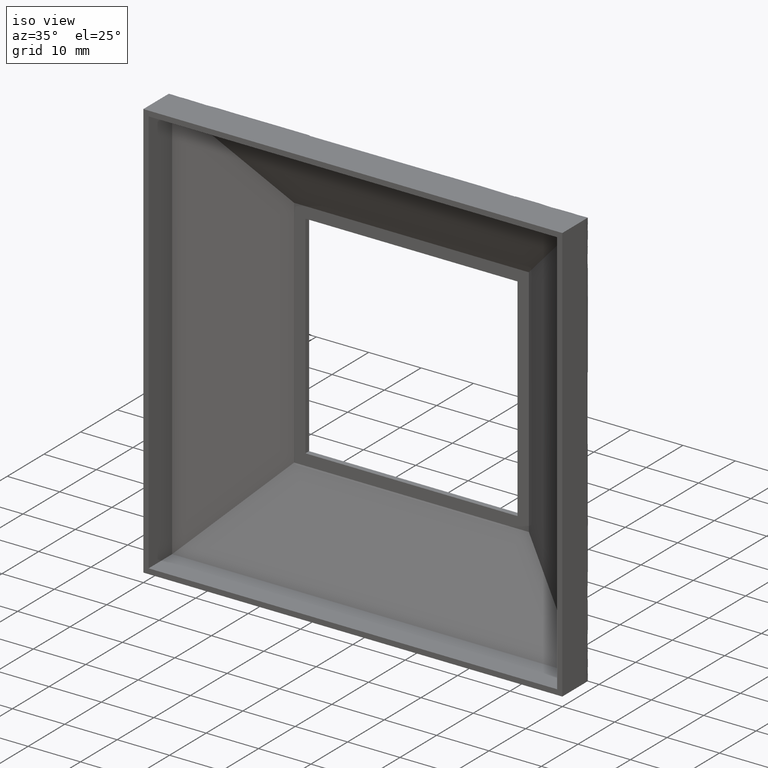
[diagram: clean part render]
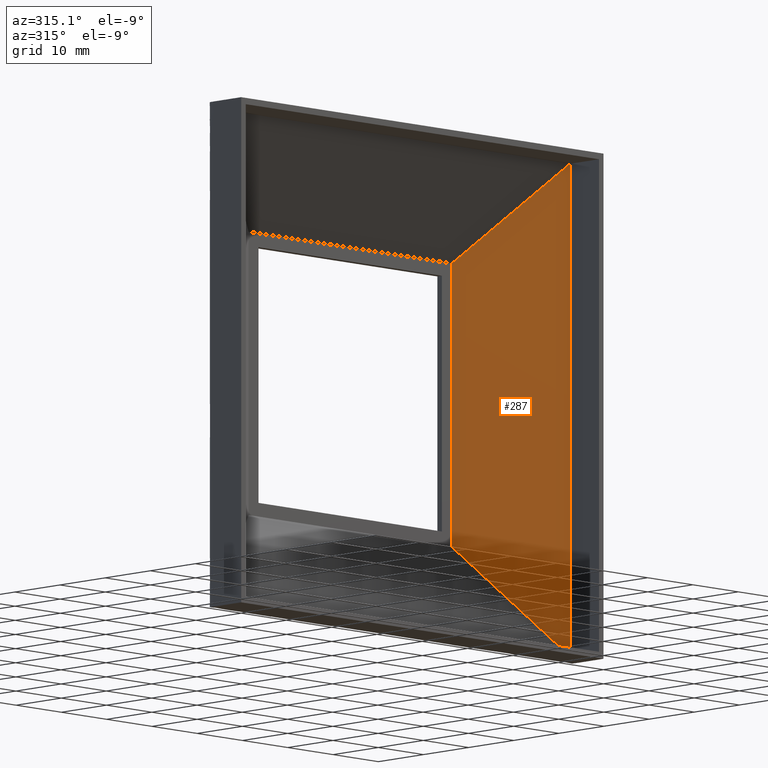
[diagram: tour spotlight — one face highlighted and labeled with its STEP entity id]
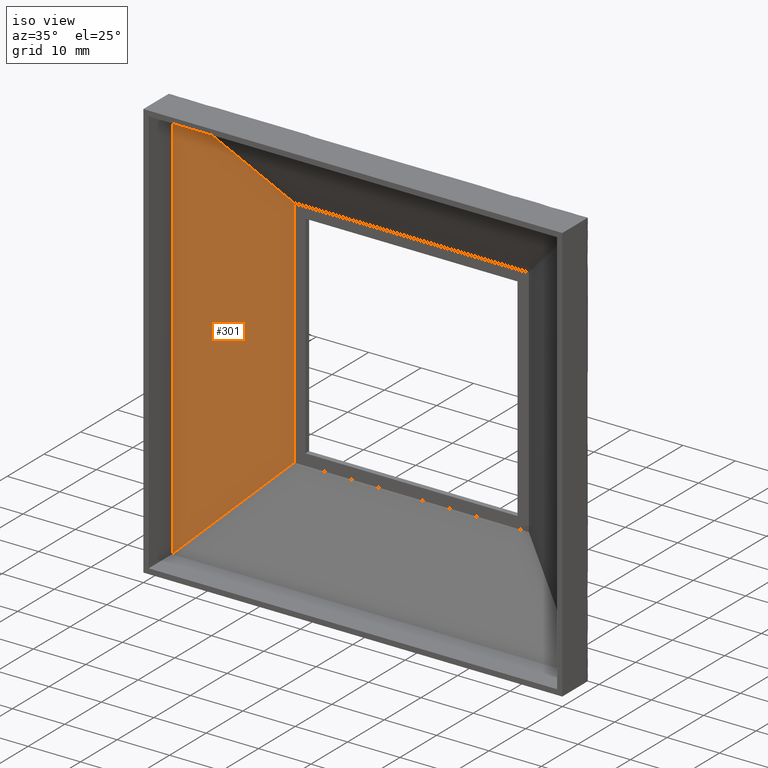
[diagram: tour spotlight — one face highlighted and labeled with its STEP entity id]
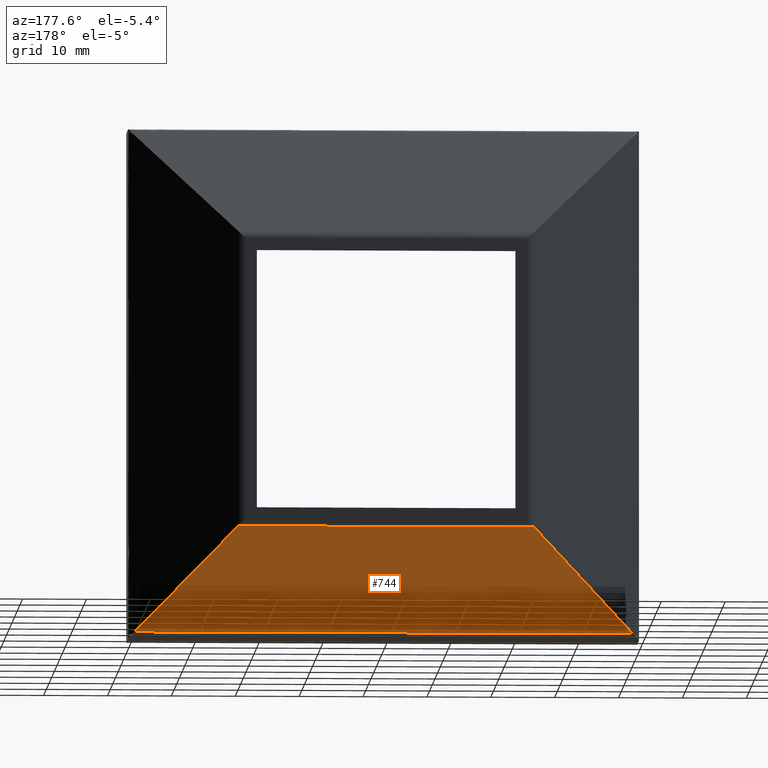
[diagram: tour spotlight — one face highlighted and labeled with its STEP entity id]
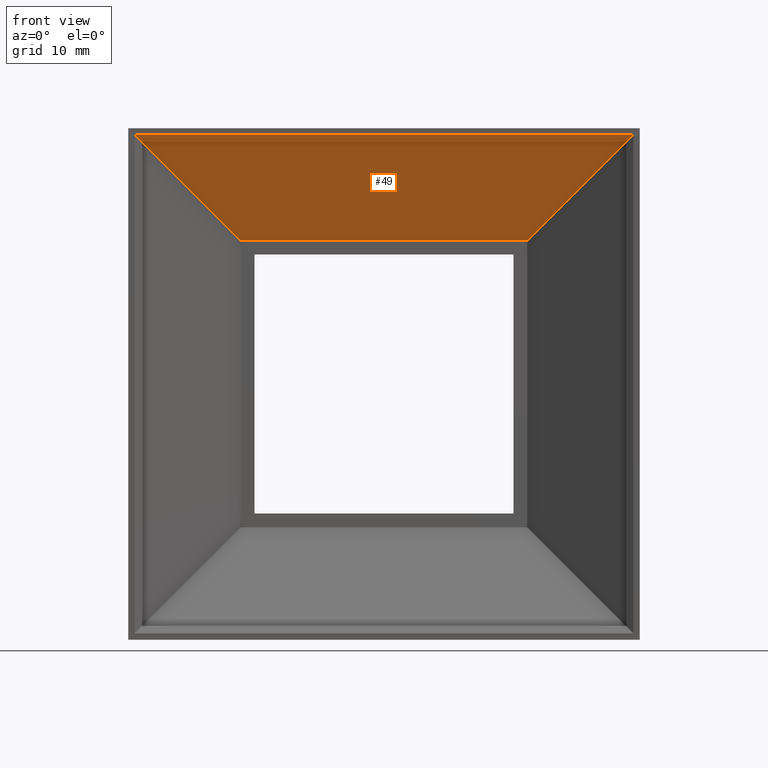
[diagram: tour spotlight — one face highlighted and labeled with its STEP entity id]
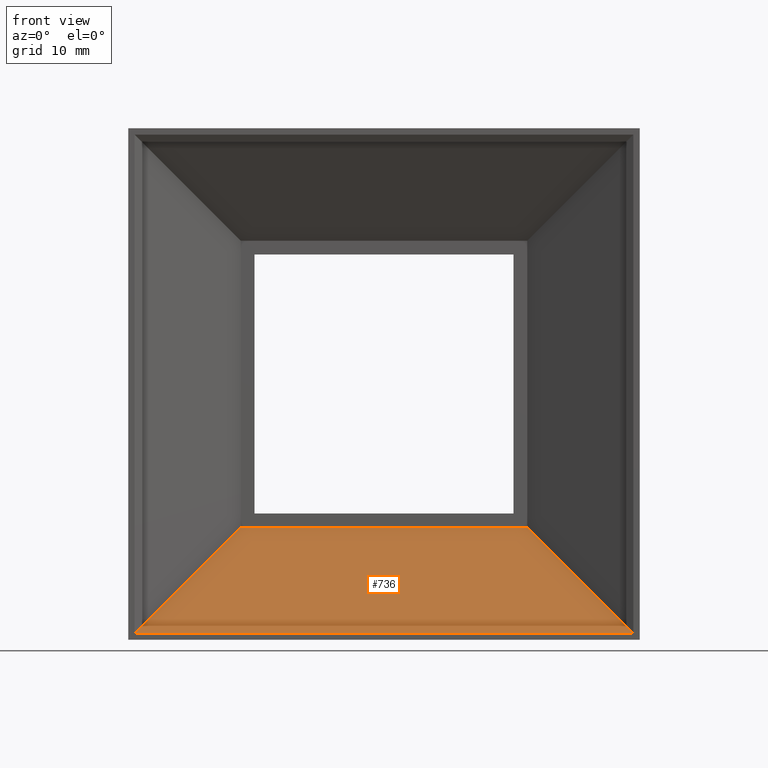
[diagram: tour spotlight — one face highlighted and labeled with its STEP entity id]
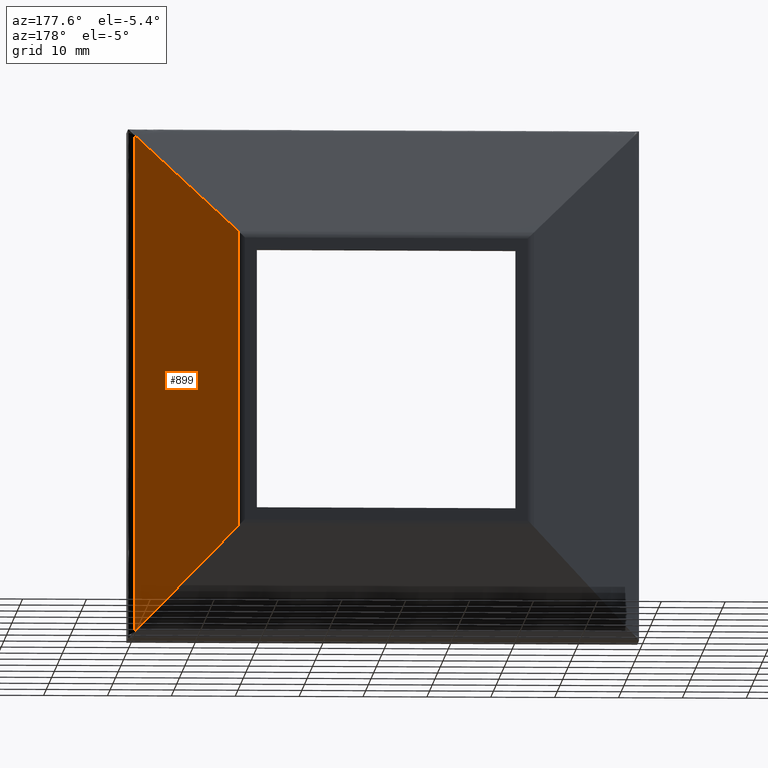
[diagram: tour spotlight — one face highlighted and labeled with its STEP entity id]
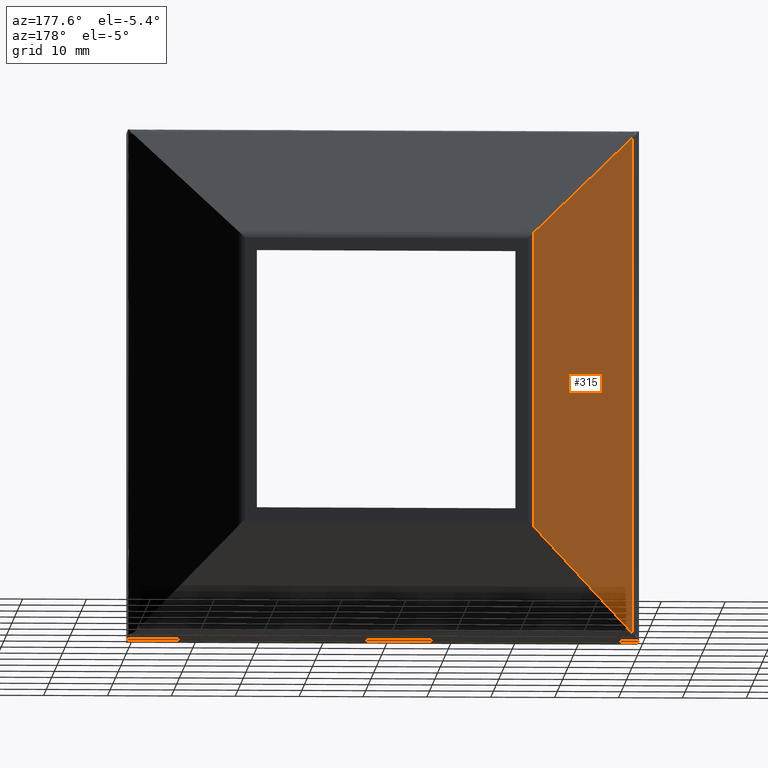
[diagram: tour spotlight — one face highlighted and labeled with its STEP entity id]
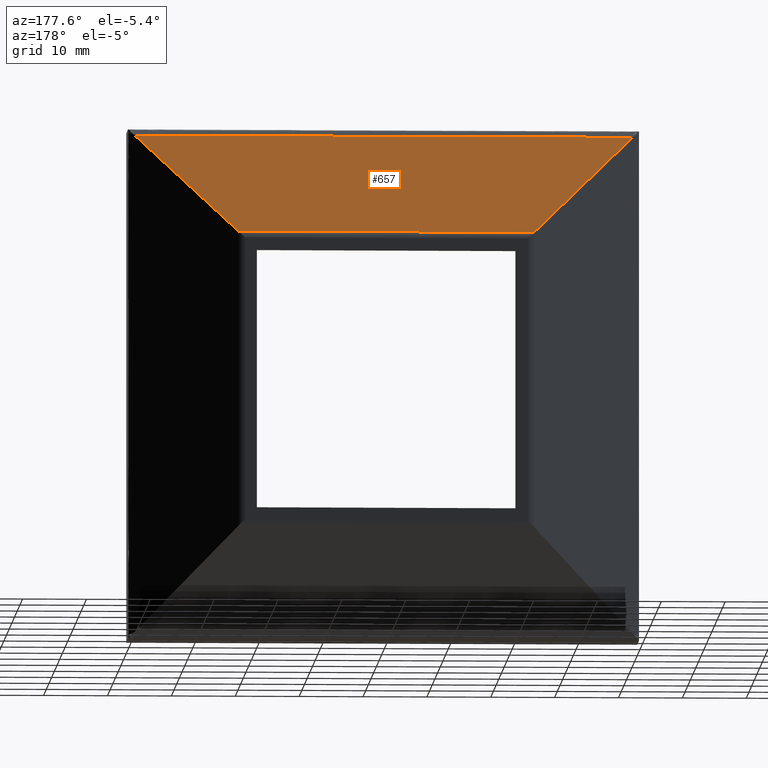
[diagram: tour spotlight — one face highlighted and labeled with its STEP entity id]
A machine part: a face-by-face anatomy tour. The part has 31 B-rep faces; the first image is the clean iso view, then the 8 largest visible faces are spotlighted one at a time (largest first), each with its STEP entity span.

Face 1 — auxiliary view, entity #287. In plain terms, the highlighted planar face has unit normal (0.5, 0.866, 0).
Definition (entity closure, byte-faithful):
#93 = DIRECTION ( 'NONE',  ( -0.8660254037844397100, 0.4999999999999979500, 0.0000000000000000000 ) ) ;
#109 = VERTEX_POINT ( 'NONE', #206 ) ;
#118 = CARTESIAN_POINT ( 'NONE',  ( 22.41154273187999700, 16.00000000000000000, 39.99999999999999300 ) ) ;
#139 = LINE ( 'NONE', #242, #1124 ) ;
#159 = DIRECTION ( 'NONE',  ( 0.6546536707079776400, -0.3779644730092254800, 0.6546536707079776400 ) ) ;
#174 = VECTOR ( 'NONE', #876, 1000.000000000000000 ) ;
#182 = DIRECTION ( 'NONE',  ( 0.4999999999999980000, 0.8660254037844398200, 0.0000000000000000000 ) ) ;
#206 = CARTESIAN_POINT ( 'NONE',  ( 22.41154273187999400, 16.00000000000000000, 22.41154273188000100 ) ) ;
#210 = VERTEX_POINT ( 'NONE', #712 ) ;
#211 = EDGE_CURVE ( 'NONE', #218, #743, #935, .T. ) ;
#218 = VERTEX_POINT ( 'NONE', #790 ) ;
#224 = ORIENTED_EDGE ( 'NONE', *, *, #737, .F. ) ;
#242 = CARTESIAN_POINT ( 'NONE',  ( 38.99999999999998600, 6.422649730810371200, 39.99999999999999300 ) ) ;
#287 = ADVANCED_FACE ( 'NONE', ( #853 ), #516, .F. ) ;
#327 = EDGE_CURVE ( 'NONE', #109, #218, #374, .T. ) ;
#335 = ORIENTED_EDGE ( 'NONE', *, *, #327, .T. ) ;
#369 = CARTESIAN_POINT ( 'NONE',  ( 39.71428571428570100, 6.010256681389211800, -39.71428571428572200 ) ) ;
#374 = LINE ( 'NONE', #118, #174 ) ;
#447 = ORIENTED_EDGE ( 'NONE', *, *, #463, .F. ) ;
#463 = EDGE_CURVE ( 'NONE', #210, #743, #139, .T. ) ;
#469 = VECTOR ( 'NONE', #159, 1000.000000000000000 ) ;
#504 = DIRECTION ( 'NONE',  ( -0.0000000000000000000, 0.0000000000000000000, -1.000000000000000000 ) ) ;
#516 = PLANE ( 'NONE',  #733 ) ;
#519 = LINE ( 'NONE', #826, #469 ) ;
#603 = CARTESIAN_POINT ( 'NONE',  ( 39.49999999999998600, 6.133974596215559800, 39.99999999999999300 ) ) ;
#702 = ORIENTED_EDGE ( 'NONE', *, *, #211, .T. ) ;
#712 = CARTESIAN_POINT ( 'NONE',  ( 38.99999999999998600, 6.422649730810371200, 38.99999999999999300 ) ) ;
#733 = AXIS2_PLACEMENT_3D ( 'NONE', #603, #182, #93 ) ;
#737 = EDGE_CURVE ( 'NONE', #109, #210, #519, .T. ) ;
#743 = VERTEX_POINT ( 'NONE', #923 ) ;
#790 = CARTESIAN_POINT ( 'NONE',  ( 22.41154273187999400, 16.00000000000000000, -22.41154273188001500 ) ) ;
#826 = CARTESIAN_POINT ( 'NONE',  ( 39.71428571428570100, 6.010256681389211800, 39.71428571428570800 ) ) ;
#853 = FACE_OUTER_BOUND ( 'NONE', #1064, .T. ) ;
#876 = DIRECTION ( 'NONE',  ( -0.0000000000000000000, 0.0000000000000000000, -1.000000000000000000 ) ) ;
#889 = DIRECTION ( 'NONE',  ( 0.6546536707079776400, -0.3779644730092254800, -0.6546536707079776400 ) ) ;
#923 = CARTESIAN_POINT ( 'NONE',  ( 38.99999999999998600, 6.422649730810371200, -39.00000000000000700 ) ) ;
#935 = LINE ( 'NONE', #369, #1091 ) ;
#1064 = EDGE_LOOP ( 'NONE', ( #447, #224, #335, #702 ) ) ;
#1091 = VECTOR ( 'NONE', #889, 1000.000000000000000 ) ;
#1124 = VECTOR ( 'NONE', #504, 1000.000000000000000 ) ;

Face 2 — iso view, entity #301. In plain terms, the highlighted planar face has unit normal (-0.5, 0.866, 0).
Definition (entity closure, byte-faithful):
#29 = ORIENTED_EDGE ( 'NONE', *, *, #1060, .F. ) ;
#78 = AXIS2_PLACEMENT_3D ( 'NONE', #354, #526, #958 ) ;
#105 = EDGE_CURVE ( 'NONE', #1083, #270, #179, .T. ) ;
#179 = LINE ( 'NONE', #798, #1067 ) ;
#216 = EDGE_LOOP ( 'NONE', ( #29, #551, #781, #913 ) ) ;
#247 = CARTESIAN_POINT ( 'NONE',  ( -22.41154273188002200, 16.00000000000000000, 22.41154273188000100 ) ) ;
#270 = VERTEX_POINT ( 'NONE', #967 ) ;
#301 = ADVANCED_FACE ( 'NONE', ( #742 ), #414, .F. ) ;
#354 = CARTESIAN_POINT ( 'NONE',  ( -39.50000000000001400, 6.133974596215559800, -40.00000000000000700 ) ) ;
#380 = DIRECTION ( 'NONE',  ( -0.0000000000000000000, -0.0000000000000000000, 1.000000000000000000 ) ) ;
#385 = VECTOR ( 'NONE', #581, 1000.000000000000000 ) ;
#394 = CARTESIAN_POINT ( 'NONE',  ( -22.41154273188002200, 16.00000000000000000, -22.41154273188001500 ) ) ;
#414 = PLANE ( 'NONE',  #78 ) ;
#416 = DIRECTION ( 'NONE',  ( -0.0000000000000000000, -0.0000000000000000000, 1.000000000000000000 ) ) ;
#431 = VERTEX_POINT ( 'NONE', #247 ) ;
#493 = VECTOR ( 'NONE', #416, 1000.000000000000000 ) ;
#526 = DIRECTION ( 'NONE',  ( -0.4999999999999980000, 0.8660254037844398200, 0.0000000000000000000 ) ) ;
#551 = ORIENTED_EDGE ( 'NONE', *, *, #105, .F. ) ;
#555 = VERTEX_POINT ( 'NONE', #741 ) ;
#581 = DIRECTION ( 'NONE',  ( -0.6546536707079776400, -0.3779644730092254800, 0.6546536707079776400 ) ) ;
#634 = CARTESIAN_POINT ( 'NONE',  ( -39.00000000000001400, 6.422649730810371200, -40.00000000000000700 ) ) ;
#647 = CARTESIAN_POINT ( 'NONE',  ( -22.41154273188002600, 16.00000000000000000, -40.00000000000000700 ) ) ;
#668 = CARTESIAN_POINT ( 'NONE',  ( -39.71428571428573000, 6.010256681389211800, 39.71428571428570800 ) ) ;
#720 = LINE ( 'NONE', #647, #493 ) ;
#741 = CARTESIAN_POINT ( 'NONE',  ( -39.00000000000001400, 6.422649730810371200, 38.99999999999999300 ) ) ;
#742 = FACE_OUTER_BOUND ( 'NONE', #216, .T. ) ;
#776 = VECTOR ( 'NONE', #380, 1000.000000000000000 ) ;
#781 = ORIENTED_EDGE ( 'NONE', *, *, #1086, .T. ) ;
#798 = CARTESIAN_POINT ( 'NONE',  ( -39.71428571428573000, 6.010256681389211800, -39.71428571428572200 ) ) ;
#828 = EDGE_CURVE ( 'NONE', #431, #555, #924, .T. ) ;
#878 = DIRECTION ( 'NONE',  ( -0.6546536707079776400, -0.3779644730092254800, -0.6546536707079776400 ) ) ;
#913 = ORIENTED_EDGE ( 'NONE', *, *, #828, .T. ) ;
#924 = LINE ( 'NONE', #668, #385 ) ;
#958 = DIRECTION ( 'NONE',  ( -0.8660254037844397100, -0.4999999999999979500, 0.0000000000000000000 ) ) ;
#967 = CARTESIAN_POINT ( 'NONE',  ( -39.00000000000001400, 6.422649730810371200, -39.00000000000000700 ) ) ;
#1034 = LINE ( 'NONE', #634, #776 ) ;
#1060 = EDGE_CURVE ( 'NONE', #270, #555, #1034, .T. ) ;
#1067 = VECTOR ( 'NONE', #878, 1000.000000000000000 ) ;
#1083 = VERTEX_POINT ( 'NONE', #394 ) ;
#1086 = EDGE_CURVE ( 'NONE', #1083, #431, #720, .T. ) ;

Face 3 — auxiliary view, entity #744. In plain terms, the highlighted planar face has unit normal (0, 0.866, -0.5).
Definition (entity closure, byte-faithful):
#8 = CARTESIAN_POINT ( 'NONE',  ( 12.99999999999997700, 7.577350269189627100, -39.00000000000000000 ) ) ;
#23 = EDGE_CURVE ( 'NONE', #877, #1073, #568, .T. ) ;
#45 = EDGE_LOOP ( 'NONE', ( #635, #662, #393, #195 ) ) ;
#61 = PLANE ( 'NONE',  #892 ) ;
#148 = CARTESIAN_POINT ( 'NONE',  ( -40.00000000000001400, 7.000000000000000000, -40.00000000000000700 ) ) ;
#195 = ORIENTED_EDGE ( 'NONE', *, *, #23, .T. ) ;
#235 = CARTESIAN_POINT ( 'NONE',  ( -23.14359353944890400, 16.73205080756887900, -23.14359353944889700 ) ) ;
#276 = VECTOR ( 'NONE', #342, 1000.000000000000000 ) ;
#289 = VECTOR ( 'NONE', #403, 1000.000000000000000 ) ;
#331 = CARTESIAN_POINT ( 'NONE',  ( 23.14359353944887600, 16.73205080756887900, -23.14359353944889700 ) ) ;
#342 = DIRECTION ( 'NONE',  ( 1.000000000000000000, -0.0000000000000000000, -0.0000000000000000000 ) ) ;
#393 = ORIENTED_EDGE ( 'NONE', *, *, #464, .T. ) ;
#403 = DIRECTION ( 'NONE',  ( -0.6546536707079776400, -0.3779644730092254800, -0.6546536707079776400 ) ) ;
#408 = CARTESIAN_POINT ( 'NONE',  ( 38.99999999999997200, 7.577350269189631500, -38.99999999999999300 ) ) ;
#413 = DIRECTION ( 'NONE',  ( 0.0000000000000000000, 0.4999999999999979500, 0.8660254037844397100 ) ) ;
#441 = CARTESIAN_POINT ( 'NONE',  ( -39.00000000000000700, 7.577350269189627100, -39.00000000000000000 ) ) ;
#461 = VERTEX_POINT ( 'NONE', #331 ) ;
#464 = EDGE_CURVE ( 'NONE', #461, #877, #655, .T. ) ;
#500 = EDGE_CURVE ( 'NONE', #1076, #461, #868, .T. ) ;
#520 = FACE_OUTER_BOUND ( 'NONE', #45, .T. ) ;
#528 = CARTESIAN_POINT ( 'NONE',  ( 38.99999999999997200, 7.577350269189631500, -38.99999999999999300 ) ) ;
#568 = B_SPLINE_CURVE_WITH_KNOTS ( 'NONE', 3,
 ( #528, #8, #613, #441 ),
 .UNSPECIFIED., .F., .F.,
 ( 4, 4 ),
 ( 0.0000000000000000000, 1.000000000000000000 ),
 .UNSPECIFIED. ) ;
#593 = CARTESIAN_POINT ( 'NONE',  ( 22.67949192431111500, 16.73205080756887900, -23.14359353944890100 ) ) ;
#613 = CARTESIAN_POINT ( 'NONE',  ( -13.00000000000001800, 7.577350269189627100, -39.00000000000000000 ) ) ;
#635 = ORIENTED_EDGE ( 'NONE', *, *, #755, .F. ) ;
#655 = LINE ( 'NONE', #683, #792 ) ;
#659 = DIRECTION ( 'NONE',  ( 0.0000000000000000000, 0.8660254037844398200, -0.4999999999999980000 ) ) ;
#662 = ORIENTED_EDGE ( 'NONE', *, *, #500, .T. ) ;
#683 = CARTESIAN_POINT ( 'NONE',  ( 39.99999999999998600, 7.000000000000000000, -40.00000000000000700 ) ) ;
#744 = ADVANCED_FACE ( 'NONE', ( #520 ), #61, .T. ) ;
#755 = EDGE_CURVE ( 'NONE', #1076, #1073, #921, .T. ) ;
#761 = CARTESIAN_POINT ( 'NONE',  ( 39.99999999999998600, 7.000000000000000000, -40.00000000000000700 ) ) ;
#792 = VECTOR ( 'NONE', #942, 1000.000000000000000 ) ;
#868 = LINE ( 'NONE', #593, #276 ) ;
#877 = VERTEX_POINT ( 'NONE', #408 ) ;
#892 = AXIS2_PLACEMENT_3D ( 'NONE', #761, #659, #413 ) ;
#908 = CARTESIAN_POINT ( 'NONE',  ( -39.00000000000000700, 7.577350269189627100, -39.00000000000000000 ) ) ;
#921 = LINE ( 'NONE', #148, #289 ) ;
#942 = DIRECTION ( 'NONE',  ( 0.6546536707079776400, -0.3779644730092254800, -0.6546536707079776400 ) ) ;
#1073 = VERTEX_POINT ( 'NONE', #908 ) ;
#1076 = VERTEX_POINT ( 'NONE', #235 ) ;

Face 4 — front view, entity #49. In plain terms, the highlighted planar face has unit normal (0, 0.866, 0.5).
Definition (entity closure, byte-faithful):
#3 = AXIS2_PLACEMENT_3D ( 'NONE', #112, #99, #104 ) ;
#19 = CARTESIAN_POINT ( 'NONE',  ( -40.00000000000001400, 6.422649730810371200, 38.99999999999999300 ) ) ;
#49 = ADVANCED_FACE ( 'NONE', ( #207 ), #532, .F. ) ;
#55 = CARTESIAN_POINT ( 'NONE',  ( -40.00000000000001400, 16.00000000000000000, 22.41154273188000400 ) ) ;
#59 = EDGE_CURVE ( 'NONE', #555, #210, #856, .T. ) ;
#99 = DIRECTION ( 'NONE',  ( 0.0000000000000000000, 0.8660254037844398200, 0.4999999999999980000 ) ) ;
#104 = DIRECTION ( 'NONE',  ( 0.0000000000000000000, -0.4999999999999979500, 0.8660254037844397100 ) ) ;
#109 = VERTEX_POINT ( 'NONE', #206 ) ;
#112 = CARTESIAN_POINT ( 'NONE',  ( -40.00000000000001400, 6.133974596215559800, 39.49999999999999300 ) ) ;
#159 = DIRECTION ( 'NONE',  ( 0.6546536707079776400, -0.3779644730092254800, 0.6546536707079776400 ) ) ;
#206 = CARTESIAN_POINT ( 'NONE',  ( 22.41154273187999400, 16.00000000000000000, 22.41154273188000100 ) ) ;
#207 = FACE_OUTER_BOUND ( 'NONE', #424, .T. ) ;
#210 = VERTEX_POINT ( 'NONE', #712 ) ;
#247 = CARTESIAN_POINT ( 'NONE',  ( -22.41154273188002200, 16.00000000000000000, 22.41154273188000100 ) ) ;
#385 = VECTOR ( 'NONE', #581, 1000.000000000000000 ) ;
#407 = ORIENTED_EDGE ( 'NONE', *, *, #59, .F. ) ;
#424 = EDGE_LOOP ( 'NONE', ( #407, #592, #444, #502 ) ) ;
#431 = VERTEX_POINT ( 'NONE', #247 ) ;
#444 = ORIENTED_EDGE ( 'NONE', *, *, #787, .T. ) ;
#469 = VECTOR ( 'NONE', #159, 1000.000000000000000 ) ;
#502 = ORIENTED_EDGE ( 'NONE', *, *, #737, .T. ) ;
#519 = LINE ( 'NONE', #826, #469 ) ;
#532 = PLANE ( 'NONE',  #3 ) ;
#555 = VERTEX_POINT ( 'NONE', #741 ) ;
#566 = DIRECTION ( 'NONE',  ( 1.000000000000000000, 0.0000000000000000000, -0.0000000000000000000 ) ) ;
#581 = DIRECTION ( 'NONE',  ( -0.6546536707079776400, -0.3779644730092254800, 0.6546536707079776400 ) ) ;
#592 = ORIENTED_EDGE ( 'NONE', *, *, #828, .F. ) ;
#629 = VECTOR ( 'NONE', #794, 1000.000000000000000 ) ;
#668 = CARTESIAN_POINT ( 'NONE',  ( -39.71428571428573000, 6.010256681389211800, 39.71428571428570800 ) ) ;
#699 = LINE ( 'NONE', #55, #895 ) ;
#712 = CARTESIAN_POINT ( 'NONE',  ( 38.99999999999998600, 6.422649730810371200, 38.99999999999999300 ) ) ;
#737 = EDGE_CURVE ( 'NONE', #109, #210, #519, .T. ) ;
#741 = CARTESIAN_POINT ( 'NONE',  ( -39.00000000000001400, 6.422649730810371200, 38.99999999999999300 ) ) ;
#787 = EDGE_CURVE ( 'NONE', #431, #109, #699, .T. ) ;
#794 = DIRECTION ( 'NONE',  ( 1.000000000000000000, -0.0000000000000000000, -0.0000000000000000000 ) ) ;
#826 = CARTESIAN_POINT ( 'NONE',  ( 39.71428571428570100, 6.010256681389211800, 39.71428571428570800 ) ) ;
#828 = EDGE_CURVE ( 'NONE', #431, #555, #924, .T. ) ;
#856 = LINE ( 'NONE', #19, #629 ) ;
#895 = VECTOR ( 'NONE', #566, 1000.000000000000000 ) ;
#924 = LINE ( 'NONE', #668, #385 ) ;

Face 5 — front view, entity #736. In plain terms, the highlighted planar face has unit normal (0, 0.866, -0.5).
Definition (entity closure, byte-faithful):
#52 = VECTOR ( 'NONE', #69, 1000.000000000000000 ) ;
#69 = DIRECTION ( 'NONE',  ( -1.000000000000000000, 0.0000000000000000000, -0.0000000000000000000 ) ) ;
#105 = EDGE_CURVE ( 'NONE', #1083, #270, #179, .T. ) ;
#114 = DIRECTION ( 'NONE',  ( -1.000000000000000000, -0.0000000000000000000, -0.0000000000000000000 ) ) ;
#151 = DIRECTION ( 'NONE',  ( 0.0000000000000000000, 0.8660254037844398200, -0.4999999999999980000 ) ) ;
#173 = AXIS2_PLACEMENT_3D ( 'NONE', #1000, #151, #324 ) ;
#177 = EDGE_CURVE ( 'NONE', #743, #270, #305, .T. ) ;
#179 = LINE ( 'NONE', #798, #1067 ) ;
#211 = EDGE_CURVE ( 'NONE', #218, #743, #935, .T. ) ;
#218 = VERTEX_POINT ( 'NONE', #790 ) ;
#258 = ORIENTED_EDGE ( 'NONE', *, *, #367, .T. ) ;
#270 = VERTEX_POINT ( 'NONE', #967 ) ;
#305 = LINE ( 'NONE', #579, #52 ) ;
#324 = DIRECTION ( 'NONE',  ( 0.0000000000000000000, 0.4999999999999979500, 0.8660254037844397100 ) ) ;
#367 = EDGE_CURVE ( 'NONE', #218, #1083, #764, .T. ) ;
#369 = CARTESIAN_POINT ( 'NONE',  ( 39.71428571428570100, 6.010256681389211800, -39.71428571428572200 ) ) ;
#390 = ORIENTED_EDGE ( 'NONE', *, *, #105, .T. ) ;
#394 = CARTESIAN_POINT ( 'NONE',  ( -22.41154273188002200, 16.00000000000000000, -22.41154273188001500 ) ) ;
#570 = FACE_OUTER_BOUND ( 'NONE', #760, .T. ) ;
#579 = CARTESIAN_POINT ( 'NONE',  ( 39.99999999999998600, 6.422649730810371200, -39.00000000000000700 ) ) ;
#653 = PLANE ( 'NONE',  #173 ) ;
#677 = ORIENTED_EDGE ( 'NONE', *, *, #211, .F. ) ;
#687 = ORIENTED_EDGE ( 'NONE', *, *, #177, .F. ) ;
#736 = ADVANCED_FACE ( 'NONE', ( #570 ), #653, .F. ) ;
#743 = VERTEX_POINT ( 'NONE', #923 ) ;
#760 = EDGE_LOOP ( 'NONE', ( #687, #677, #258, #390 ) ) ;
#764 = LINE ( 'NONE', #1051, #831 ) ;
#790 = CARTESIAN_POINT ( 'NONE',  ( 22.41154273187999400, 16.00000000000000000, -22.41154273188001500 ) ) ;
#798 = CARTESIAN_POINT ( 'NONE',  ( -39.71428571428573000, 6.010256681389211800, -39.71428571428572200 ) ) ;
#831 = VECTOR ( 'NONE', #114, 1000.000000000000000 ) ;
#878 = DIRECTION ( 'NONE',  ( -0.6546536707079776400, -0.3779644730092254800, -0.6546536707079776400 ) ) ;
#889 = DIRECTION ( 'NONE',  ( 0.6546536707079776400, -0.3779644730092254800, -0.6546536707079776400 ) ) ;
#923 = CARTESIAN_POINT ( 'NONE',  ( 38.99999999999998600, 6.422649730810371200, -39.00000000000000700 ) ) ;
#935 = LINE ( 'NONE', #369, #1091 ) ;
#967 = CARTESIAN_POINT ( 'NONE',  ( -39.00000000000001400, 6.422649730810371200, -39.00000000000000700 ) ) ;
#1000 = CARTESIAN_POINT ( 'NONE',  ( 39.99999999999998600, 6.133974596215559800, -39.50000000000000700 ) ) ;
#1051 = CARTESIAN_POINT ( 'NONE',  ( 39.99999999999998600, 16.00000000000000000, -22.41154273188001900 ) ) ;
#1067 = VECTOR ( 'NONE', #878, 1000.000000000000000 ) ;
#1083 = VERTEX_POINT ( 'NONE', #394 ) ;
#1091 = VECTOR ( 'NONE', #889, 1000.000000000000000 ) ;

Face 6 — auxiliary view, entity #899. In plain terms, the highlighted planar face has unit normal (0.5, 0.866, 0).
Definition (entity closure, byte-faithful):
#98 = CARTESIAN_POINT ( 'NONE',  ( 38.99999999999997900, 7.577350269189627100, -12.99999999999999500 ) ) ;
#146 = EDGE_CURVE ( 'NONE', #445, #752, #531, .T. ) ;
#164 = CARTESIAN_POINT ( 'NONE',  ( 23.14359353944887900, 16.73205080756887900, 22.67949192431112200 ) ) ;
#239 = AXIS2_PLACEMENT_3D ( 'NONE', #1019, #587, #763 ) ;
#252 = PLANE ( 'NONE',  #239 ) ;
#273 = ORIENTED_EDGE ( 'NONE', *, *, #146, .T. ) ;
#309 = EDGE_CURVE ( 'NONE', #752, #877, #1029, .T. ) ;
#314 = CARTESIAN_POINT ( 'NONE',  ( 38.99999999999997900, 7.577350269189627100, 38.99999999999998600 ) ) ;
#325 = ORIENTED_EDGE ( 'NONE', *, *, #680, .T. ) ;
#331 = CARTESIAN_POINT ( 'NONE',  ( 23.14359353944887600, 16.73205080756887900, -23.14359353944889700 ) ) ;
#345 = CARTESIAN_POINT ( 'NONE',  ( 38.99999999999997900, 7.577350269189627100, 38.99999999999998600 ) ) ;
#408 = CARTESIAN_POINT ( 'NONE',  ( 38.99999999999997200, 7.577350269189631500, -38.99999999999999300 ) ) ;
#445 = VERTEX_POINT ( 'NONE', #1023 ) ;
#461 = VERTEX_POINT ( 'NONE', #331 ) ;
#464 = EDGE_CURVE ( 'NONE', #461, #877, #655, .T. ) ;
#483 = ORIENTED_EDGE ( 'NONE', *, *, #464, .F. ) ;
#531 = LINE ( 'NONE', #753, #586 ) ;
#543 = VECTOR ( 'NONE', #671, 1000.000000000000000 ) ;
#586 = VECTOR ( 'NONE', #1103, 1000.000000000000000 ) ;
#587 = DIRECTION ( 'NONE',  ( 0.4999999999999980000, 0.8660254037844398200, 0.0000000000000000000 ) ) ;
#655 = LINE ( 'NONE', #683, #792 ) ;
#671 = DIRECTION ( 'NONE',  ( -0.0000000000000000000, -0.0000000000000000000, 1.000000000000000000 ) ) ;
#680 = EDGE_CURVE ( 'NONE', #461, #445, #1003, .T. ) ;
#683 = CARTESIAN_POINT ( 'NONE',  ( 39.99999999999998600, 7.000000000000000000, -40.00000000000000700 ) ) ;
#752 = VERTEX_POINT ( 'NONE', #314 ) ;
#753 = CARTESIAN_POINT ( 'NONE',  ( 39.99999999999998600, 7.000000000000000000, 39.99999999999999300 ) ) ;
#762 = CARTESIAN_POINT ( 'NONE',  ( 38.99999999999997900, 7.577350269189627100, 13.00000000000000200 ) ) ;
#763 = DIRECTION ( 'NONE',  ( -0.8660254037844397100, 0.4999999999999979500, 0.0000000000000000000 ) ) ;
#792 = VECTOR ( 'NONE', #942, 1000.000000000000000 ) ;
#843 = CARTESIAN_POINT ( 'NONE',  ( 38.99999999999997200, 7.577350269189631500, -38.99999999999999300 ) ) ;
#854 = EDGE_LOOP ( 'NONE', ( #483, #325, #273, #992 ) ) ;
#877 = VERTEX_POINT ( 'NONE', #408 ) ;
#899 = ADVANCED_FACE ( 'NONE', ( #1107 ), #252, .T. ) ;
#942 = DIRECTION ( 'NONE',  ( 0.6546536707079776400, -0.3779644730092254800, -0.6546536707079776400 ) ) ;
#992 = ORIENTED_EDGE ( 'NONE', *, *, #309, .T. ) ;
#1003 = LINE ( 'NONE', #164, #543 ) ;
#1019 = CARTESIAN_POINT ( 'NONE',  ( 39.99999999999998600, 7.000000000000000000, 39.99999999999999300 ) ) ;
#1023 = CARTESIAN_POINT ( 'NONE',  ( 23.14359353944887600, 16.73205080756887900, 23.14359353944888300 ) ) ;
#1029 = B_SPLINE_CURVE_WITH_KNOTS ( 'NONE', 3,
 ( #345, #762, #98, #843 ),
 .UNSPECIFIED., .F., .F.,
 ( 4, 4 ),
 ( 0.0000000000000000000, 1.000000000000000000 ),
 .UNSPECIFIED. ) ;
#1103 = DIRECTION ( 'NONE',  ( 0.6546536707079776400, -0.3779644730092254800, 0.6546536707079776400 ) ) ;
#1107 = FACE_OUTER_BOUND ( 'NONE', #854, .T. ) ;

Face 7 — auxiliary view, entity #315. In plain terms, the highlighted planar face has unit normal (-0.5, 0.866, 0).
Definition (entity closure, byte-faithful):
#30 = VERTEX_POINT ( 'NONE', #275 ) ;
#43 = CARTESIAN_POINT ( 'NONE',  ( -39.00000000000000700, 7.577350269189627100, 38.99999999999998600 ) ) ;
#67 = ORIENTED_EDGE ( 'NONE', *, *, #755, .T. ) ;
#103 = DIRECTION ( 'NONE',  ( -0.8660254037844397100, -0.4999999999999979500, 0.0000000000000000000 ) ) ;
#129 = CARTESIAN_POINT ( 'NONE',  ( -39.00000000000000700, 7.577350269189626200, -13.00000000000000500 ) ) ;
#148 = CARTESIAN_POINT ( 'NONE',  ( -40.00000000000001400, 7.000000000000000000, -40.00000000000000700 ) ) ;
#227 = B_SPLINE_CURVE_WITH_KNOTS ( 'NONE', 3,
 ( #985, #129, #638, #43 ),
 .UNSPECIFIED., .F., .F.,
 ( 4, 4 ),
 ( 0.0000000000000000000, 1.000000000000000000 ),
 .UNSPECIFIED. ) ;
#235 = CARTESIAN_POINT ( 'NONE',  ( -23.14359353944890400, 16.73205080756887900, -23.14359353944889700 ) ) ;
#250 = EDGE_LOOP ( 'NONE', ( #1117, #308, #67, #491 ) ) ;
#254 = VECTOR ( 'NONE', #1062, 1000.000000000000000 ) ;
#275 = CARTESIAN_POINT ( 'NONE',  ( -39.00000000000000700, 7.577350269189627100, 38.99999999999998600 ) ) ;
#283 = VECTOR ( 'NONE', #589, 1000.000000000000000 ) ;
#289 = VECTOR ( 'NONE', #403, 1000.000000000000000 ) ;
#308 = ORIENTED_EDGE ( 'NONE', *, *, #382, .T. ) ;
#315 = ADVANCED_FACE ( 'NONE', ( #455 ), #859, .T. ) ;
#341 = AXIS2_PLACEMENT_3D ( 'NONE', #436, #783, #103 ) ;
#382 = EDGE_CURVE ( 'NONE', #996, #1076, #442, .T. ) ;
#403 = DIRECTION ( 'NONE',  ( -0.6546536707079776400, -0.3779644730092254800, -0.6546536707079776400 ) ) ;
#436 = CARTESIAN_POINT ( 'NONE',  ( -40.00000000000001400, 7.000000000000000000, -40.00000000000000700 ) ) ;
#442 = LINE ( 'NONE', #799, #254 ) ;
#455 = FACE_OUTER_BOUND ( 'NONE', #250, .T. ) ;
#491 = ORIENTED_EDGE ( 'NONE', *, *, #964, .T. ) ;
#589 = DIRECTION ( 'NONE',  ( -0.6546536707079776400, -0.3779644730092254800, 0.6546536707079776400 ) ) ;
#638 = CARTESIAN_POINT ( 'NONE',  ( -39.00000000000001400, 7.577350269189624400, 12.99999999999999100 ) ) ;
#735 = CARTESIAN_POINT ( 'NONE',  ( -23.14359353944890400, 16.73205080756887900, 23.14359353944888300 ) ) ;
#755 = EDGE_CURVE ( 'NONE', #1076, #1073, #921, .T. ) ;
#783 = DIRECTION ( 'NONE',  ( -0.4999999999999980000, 0.8660254037844398200, 0.0000000000000000000 ) ) ;
#799 = CARTESIAN_POINT ( 'NONE',  ( -23.14359353944890800, 16.73205080756887900, -22.67949192431113700 ) ) ;
#859 = PLANE ( 'NONE',  #341 ) ;
#908 = CARTESIAN_POINT ( 'NONE',  ( -39.00000000000000700, 7.577350269189627100, -39.00000000000000000 ) ) ;
#921 = LINE ( 'NONE', #148, #289 ) ;
#944 = LINE ( 'NONE', #1013, #283 ) ;
#964 = EDGE_CURVE ( 'NONE', #1073, #30, #227, .T. ) ;
#985 = CARTESIAN_POINT ( 'NONE',  ( -39.00000000000000700, 7.577350269189627100, -39.00000000000000000 ) ) ;
#996 = VERTEX_POINT ( 'NONE', #735 ) ;
#1013 = CARTESIAN_POINT ( 'NONE',  ( -40.00000000000001400, 7.000000000000000000, 39.99999999999999300 ) ) ;
#1062 = DIRECTION ( 'NONE',  ( -0.0000000000000000000, -0.0000000000000000000, -1.000000000000000000 ) ) ;
#1073 = VERTEX_POINT ( 'NONE', #908 ) ;
#1076 = VERTEX_POINT ( 'NONE', #235 ) ;
#1109 = EDGE_CURVE ( 'NONE', #996, #30, #944, .T. ) ;
#1117 = ORIENTED_EDGE ( 'NONE', *, *, #1109, .F. ) ;

Face 8 — auxiliary view, entity #657. In plain terms, the highlighted planar face has unit normal (0, 0.866, 0.5).
Definition (entity closure, byte-faithful):
#30 = VERTEX_POINT ( 'NONE', #275 ) ;
#33 = CARTESIAN_POINT ( 'NONE',  ( -39.00000000000000700, 7.577350269189627100, 38.99999999999998600 ) ) ;
#34 = AXIS2_PLACEMENT_3D ( 'NONE', #660, #404, #567 ) ;
#63 = EDGE_CURVE ( 'NONE', #445, #996, #835, .T. ) ;
#123 = EDGE_CURVE ( 'NONE', #30, #752, #827, .T. ) ;
#133 = PLANE ( 'NONE',  #34 ) ;
#146 = EDGE_CURVE ( 'NONE', #445, #752, #531, .T. ) ;
#265 = FACE_OUTER_BOUND ( 'NONE', #1113, .T. ) ;
#275 = CARTESIAN_POINT ( 'NONE',  ( -39.00000000000000700, 7.577350269189627100, 38.99999999999998600 ) ) ;
#283 = VECTOR ( 'NONE', #589, 1000.000000000000000 ) ;
#314 = CARTESIAN_POINT ( 'NONE',  ( 38.99999999999997900, 7.577350269189627100, 38.99999999999998600 ) ) ;
#404 = DIRECTION ( 'NONE',  ( 0.0000000000000000000, 0.8660254037844398200, 0.4999999999999980000 ) ) ;
#445 = VERTEX_POINT ( 'NONE', #1023 ) ;
#458 = VECTOR ( 'NONE', #864, 1000.000000000000000 ) ;
#512 = ORIENTED_EDGE ( 'NONE', *, *, #123, .T. ) ;
#531 = LINE ( 'NONE', #753, #586 ) ;
#567 = DIRECTION ( 'NONE',  ( 0.0000000000000000000, -0.4999999999999979500, 0.8660254037844397100 ) ) ;
#573 = ORIENTED_EDGE ( 'NONE', *, *, #146, .F. ) ;
#586 = VECTOR ( 'NONE', #1103, 1000.000000000000000 ) ;
#589 = DIRECTION ( 'NONE',  ( -0.6546536707079776400, -0.3779644730092254800, 0.6546536707079776400 ) ) ;
#622 = CARTESIAN_POINT ( 'NONE',  ( 38.99999999999997900, 7.577350269189627100, 38.99999999999998600 ) ) ;
#657 = ADVANCED_FACE ( 'NONE', ( #265 ), #133, .T. ) ;
#660 = CARTESIAN_POINT ( 'NONE',  ( -40.00000000000001400, 7.000000000000000000, 39.99999999999999300 ) ) ;
#713 = CARTESIAN_POINT ( 'NONE',  ( -22.67949192431114400, 16.73205080756887900, 23.14359353944888700 ) ) ;
#723 = CARTESIAN_POINT ( 'NONE',  ( -13.00000000000001800, 7.577350269189627100, 38.99999999999998600 ) ) ;
#735 = CARTESIAN_POINT ( 'NONE',  ( -23.14359353944890400, 16.73205080756887900, 23.14359353944888300 ) ) ;
#752 = VERTEX_POINT ( 'NONE', #314 ) ;
#753 = CARTESIAN_POINT ( 'NONE',  ( 39.99999999999998600, 7.000000000000000000, 39.99999999999999300 ) ) ;
#796 = ORIENTED_EDGE ( 'NONE', *, *, #1109, .T. ) ;
#827 = B_SPLINE_CURVE_WITH_KNOTS ( 'NONE', 3,
 ( #33, #723, #1058, #622 ),
 .UNSPECIFIED., .F., .F.,
 ( 4, 4 ),
 ( 0.0000000000000000000, 1.000000000000000000 ),
 .UNSPECIFIED. ) ;
#835 = LINE ( 'NONE', #713, #458 ) ;
#864 = DIRECTION ( 'NONE',  ( -1.000000000000000000, -0.0000000000000000000, -0.0000000000000000000 ) ) ;
#944 = LINE ( 'NONE', #1013, #283 ) ;
#986 = ORIENTED_EDGE ( 'NONE', *, *, #63, .T. ) ;
#996 = VERTEX_POINT ( 'NONE', #735 ) ;
#1013 = CARTESIAN_POINT ( 'NONE',  ( -40.00000000000001400, 7.000000000000000000, 39.99999999999999300 ) ) ;
#1023 = CARTESIAN_POINT ( 'NONE',  ( 23.14359353944887600, 16.73205080756887900, 23.14359353944888300 ) ) ;
#1058 = CARTESIAN_POINT ( 'NONE',  ( 12.99999999999997700, 7.577350269189627100, 38.99999999999998600 ) ) ;
#1103 = DIRECTION ( 'NONE',  ( 0.6546536707079776400, -0.3779644730092254800, 0.6546536707079776400 ) ) ;
#1109 = EDGE_CURVE ( 'NONE', #996, #30, #944, .T. ) ;
#1113 = EDGE_LOOP ( 'NONE', ( #573, #986, #796, #512 ) ) ;